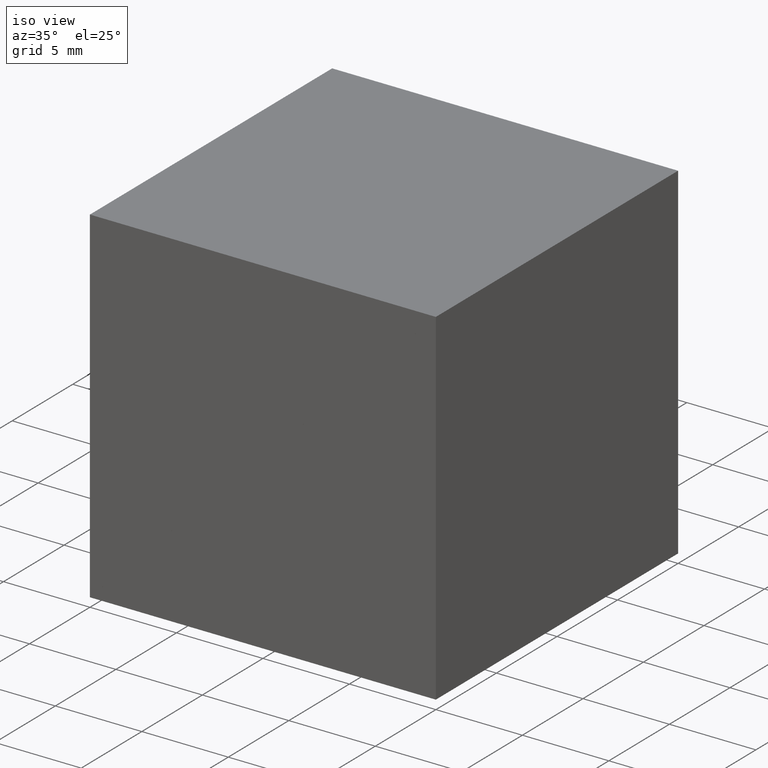
[diagram: clean part render]
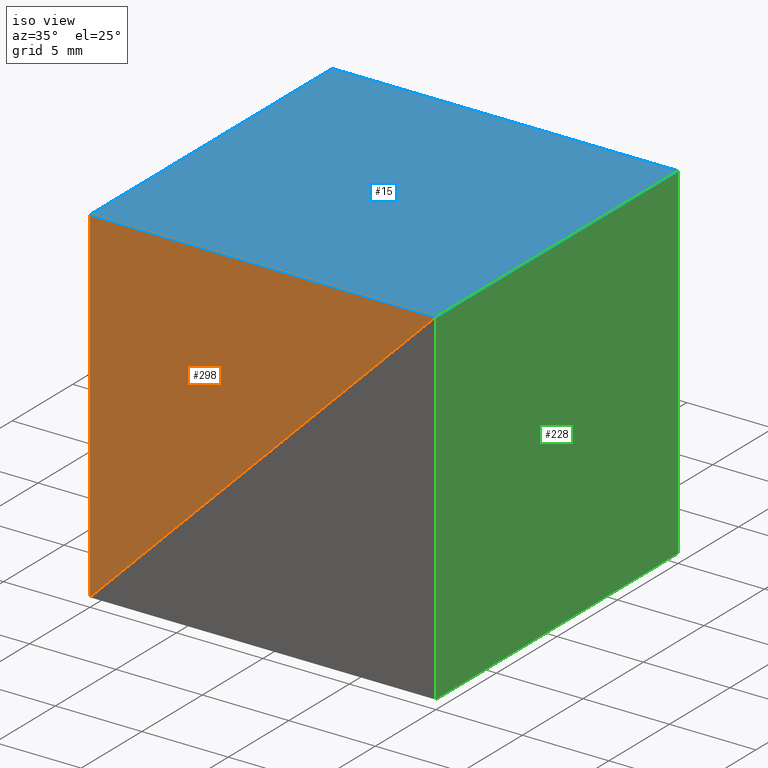
[diagram: same view with three faces highlighted in distinct colors, each labeled with its STEP entity id]
A machine part, iso view with three faces highlighted in distinct colors.
Their STEP definitions:

[orange] entity #298 — the highlighted planar face has unit normal (0, 1, 0).
#4 = ORIENTED_EDGE ( 'NONE', *, *, #5, .T. ) ;
#5 = EDGE_CURVE ( 'NONE', #12, #141, #219, .T. ) ;
#12 = VERTEX_POINT ( 'NONE', #286 ) ;
#24 = AXIS2_PLACEMENT_3D ( 'NONE', #295, #188, #40 ) ;
#31 = VECTOR ( 'NONE', #161, 1000.000000000000000 ) ;
#38 = CARTESIAN_POINT ( 'NONE',  ( -20.00000000000000000, -0.0000000000000000000, -19.99999999999999600 ) ) ;
#40 = DIRECTION ( 'NONE',  ( 0.0000000000000000000, -0.0000000000000000000, 1.000000000000000000 ) ) ;
#52 = CARTESIAN_POINT ( 'NONE',  ( 0.0000000000000000000, 0.0000000000000000000, 0.0000000000000000000 ) ) ;
#75 = VECTOR ( 'NONE', #99, 1000.000000000000000 ) ;
#99 = DIRECTION ( 'NONE',  ( -1.000000000000000000, -0.0000000000000000000, -0.0000000000000000000 ) ) ;
#105 = DIRECTION ( 'NONE',  ( 0.7071067811865475700, 0.0000000000000000000, 0.7071067811865474600 ) ) ;
#108 = PLANE ( 'NONE',  #24 ) ;
#122 = CARTESIAN_POINT ( 'NONE',  ( 0.0000000000000000000, 0.0000000000000000000, 0.0000000000000000000 ) ) ;
#126 = VERTEX_POINT ( 'NONE', #178 ) ;
#138 = FACE_OUTER_BOUND ( 'NONE', #168, .T. ) ;
#141 = VERTEX_POINT ( 'NONE', #122 ) ;
#147 = CARTESIAN_POINT ( 'NONE',  ( -20.00000000000000000, 0.0000000000000000000, 0.0000000000000000000 ) ) ;
#152 = ORIENTED_EDGE ( 'NONE', *, *, #257, .T. ) ;
#161 = DIRECTION ( 'NONE',  ( -0.0000000000000000000, -0.0000000000000000000, -1.000000000000000000 ) ) ;
#168 = EDGE_LOOP ( 'NONE', ( #4, #190, #152 ) ) ;
#173 = EDGE_CURVE ( 'NONE', #141, #126, #292, .T. ) ;
#178 = CARTESIAN_POINT ( 'NONE',  ( -20.00000000000000000, 0.0000000000000000000, 0.0000000000000000000 ) ) ;
#188 = DIRECTION ( 'NONE',  ( 0.0000000000000000000, 1.000000000000000000, 0.0000000000000000000 ) ) ;
#190 = ORIENTED_EDGE ( 'NONE', *, *, #173, .T. ) ;
#219 = LINE ( 'NONE', #52, #241 ) ;
#241 = VECTOR ( 'NONE', #105, 1000.000000000000000 ) ;
#257 = EDGE_CURVE ( 'NONE', #126, #12, #278, .T. ) ;
#278 = LINE ( 'NONE', #38, #31 ) ;
#286 = CARTESIAN_POINT ( 'NONE',  ( -20.00000000000000000, -0.0000000000000000000, -19.99999999999999600 ) ) ;
#292 = LINE ( 'NONE', #147, #75 ) ;
#295 = CARTESIAN_POINT ( 'NONE',  ( 0.0000000000000000000, 0.0000000000000000000, 0.0000000000000000000 ) ) ;
#298 = ADVANCED_FACE ( 'NONE', ( #138 ), #108, .F. ) ;

[blue] entity #15 — the highlighted planar face has unit normal (-0, 0, 1).
#1 = FACE_OUTER_BOUND ( 'NONE', #225, .T. ) ;
#6 = CARTESIAN_POINT ( 'NONE',  ( 0.0000000000000000000, 20.00000000000000000, 0.0000000000000000000 ) ) ;
#7 = CARTESIAN_POINT ( 'NONE',  ( 0.0000000000000000000, 20.00000000000000000, 0.0000000000000000000 ) ) ;
#13 = CARTESIAN_POINT ( 'NONE',  ( -20.00000000000000000, 20.00000000000000000, 0.0000000000000000000 ) ) ;
#15 = ADVANCED_FACE ( 'NONE', ( #1 ), #154, .T. ) ;
#21 = ORIENTED_EDGE ( 'NONE', *, *, #68, .T. ) ;
#41 = VECTOR ( 'NONE', #66, 1000.000000000000000 ) ;
#44 = ORIENTED_EDGE ( 'NONE', *, *, #71, .F. ) ;
#45 = LINE ( 'NONE', #6, #117 ) ;
#48 = CARTESIAN_POINT ( 'NONE',  ( -20.00000000000000000, 20.00000000000000000, 0.0000000000000000000 ) ) ;
#54 = DIRECTION ( 'NONE',  ( 1.000000000000000000, 0.0000000000000000000, 0.0000000000000000000 ) ) ;
#65 = EDGE_CURVE ( 'NONE', #194, #74, #273, .T. ) ;
#66 = DIRECTION ( 'NONE',  ( 0.0000000000000000000, -1.000000000000000000, 0.0000000000000000000 ) ) ;
#68 = EDGE_CURVE ( 'NONE', #74, #126, #140, .T. ) ;
#71 = EDGE_CURVE ( 'NONE', #194, #141, #45, .T. ) ;
#74 = VERTEX_POINT ( 'NONE', #171 ) ;
#75 = VECTOR ( 'NONE', #99, 1000.000000000000000 ) ;
#77 = DIRECTION ( 'NONE',  ( -0.0000000000000000000, 0.0000000000000000000, 1.000000000000000000 ) ) ;
#99 = DIRECTION ( 'NONE',  ( -1.000000000000000000, -0.0000000000000000000, -0.0000000000000000000 ) ) ;
#117 = VECTOR ( 'NONE', #144, 1000.000000000000000 ) ;
#122 = CARTESIAN_POINT ( 'NONE',  ( 0.0000000000000000000, 0.0000000000000000000, 0.0000000000000000000 ) ) ;
#126 = VERTEX_POINT ( 'NONE', #178 ) ;
#136 = VECTOR ( 'NONE', #240, 1000.000000000000000 ) ;
#140 = LINE ( 'NONE', #174, #41 ) ;
#141 = VERTEX_POINT ( 'NONE', #122 ) ;
#144 = DIRECTION ( 'NONE',  ( 0.0000000000000000000, -1.000000000000000000, 0.0000000000000000000 ) ) ;
#147 = CARTESIAN_POINT ( 'NONE',  ( -20.00000000000000000, 0.0000000000000000000, 0.0000000000000000000 ) ) ;
#154 = PLANE ( 'NONE',  #258 ) ;
#171 = CARTESIAN_POINT ( 'NONE',  ( -20.00000000000000000, 20.00000000000000000, 0.0000000000000000000 ) ) ;
#173 = EDGE_CURVE ( 'NONE', #141, #126, #292, .T. ) ;
#174 = CARTESIAN_POINT ( 'NONE',  ( -20.00000000000000000, 20.00000000000000000, 0.0000000000000000000 ) ) ;
#178 = CARTESIAN_POINT ( 'NONE',  ( -20.00000000000000000, 0.0000000000000000000, 0.0000000000000000000 ) ) ;
#181 = ORIENTED_EDGE ( 'NONE', *, *, #65, .T. ) ;
#194 = VERTEX_POINT ( 'NONE', #7 ) ;
#225 = EDGE_LOOP ( 'NONE', ( #259, #44, #181, #21 ) ) ;
#240 = DIRECTION ( 'NONE',  ( -1.000000000000000000, -0.0000000000000000000, -0.0000000000000000000 ) ) ;
#258 = AXIS2_PLACEMENT_3D ( 'NONE', #13, #77, #54 ) ;
#259 = ORIENTED_EDGE ( 'NONE', *, *, #173, .F. ) ;
#273 = LINE ( 'NONE', #48, #136 ) ;
#292 = LINE ( 'NONE', #147, #75 ) ;

[green] entity #228 — the highlighted planar face has unit normal (-1, 0, 0).
#17 = PLANE ( 'NONE',  #84 ) ;
#19 = LINE ( 'NONE', #222, #51 ) ;
#35 = DIRECTION ( 'NONE',  ( 0.0000000000000000000, 0.0000000000000000000, 1.000000000000000000 ) ) ;
#47 = VERTEX_POINT ( 'NONE', #281 ) ;
#51 = VECTOR ( 'NONE', #95, 1000.000000000000000 ) ;
#56 = CARTESIAN_POINT ( 'NONE',  ( 0.0000000000000000000, 20.00000000000000000, 0.0000000000000000000 ) ) ;
#67 = VECTOR ( 'NONE', #183, 1000.000000000000000 ) ;
#70 = VECTOR ( 'NONE', #261, 1000.000000000000000 ) ;
#72 = CARTESIAN_POINT ( 'NONE',  ( 0.0000000000000000000, 20.00000000000000000, 0.0000000000000000000 ) ) ;
#83 = LINE ( 'NONE', #289, #121 ) ;
#84 = AXIS2_PLACEMENT_3D ( 'NONE', #130, #186, #35 ) ;
#89 = VERTEX_POINT ( 'NONE', #244 ) ;
#90 = ORIENTED_EDGE ( 'NONE', *, *, #155, .F. ) ;
#95 = DIRECTION ( 'NONE',  ( 0.0000000000000000000, 0.0000000000000000000, -1.000000000000000000 ) ) ;
#109 = EDGE_CURVE ( 'NONE', #47, #89, #19, .T. ) ;
#121 = VECTOR ( 'NONE', #270, 1000.000000000000000 ) ;
#130 = CARTESIAN_POINT ( 'NONE',  ( 0.0000000000000000000, 20.00000000000000000, 0.0000000000000000000 ) ) ;
#135 = EDGE_CURVE ( 'NONE', #238, #237, #265, .T. ) ;
#137 = EDGE_CURVE ( 'NONE', #238, #47, #245, .T. ) ;
#155 = EDGE_CURVE ( 'NONE', #237, #89, #83, .T. ) ;
#182 = ORIENTED_EDGE ( 'NONE', *, *, #135, .F. ) ;
#183 = DIRECTION ( 'NONE',  ( -0.0000000000000000000, -1.000000000000000000, -0.0000000000000000000 ) ) ;
#186 = DIRECTION ( 'NONE',  ( -1.000000000000000000, 0.0000000000000000000, 0.0000000000000000000 ) ) ;
#222 = CARTESIAN_POINT ( 'NONE',  ( 0.0000000000000000000, 0.0000000000000000000, 0.0000000000000000000 ) ) ;
#228 = ADVANCED_FACE ( 'NONE', ( #269 ), #17, .F. ) ;
#237 = VERTEX_POINT ( 'NONE', #294 ) ;
#238 = VERTEX_POINT ( 'NONE', #56 ) ;
#244 = CARTESIAN_POINT ( 'NONE',  ( 0.0000000000000000000, 0.0000000000000000000, -20.00000000000000000 ) ) ;
#245 = LINE ( 'NONE', #72, #67 ) ;
#255 = ORIENTED_EDGE ( 'NONE', *, *, #109, .T. ) ;
#261 = DIRECTION ( 'NONE',  ( 0.0000000000000000000, 0.0000000000000000000, -1.000000000000000000 ) ) ;
#265 = LINE ( 'NONE', #282, #70 ) ;
#269 = FACE_OUTER_BOUND ( 'NONE', #288, .T. ) ;
#270 = DIRECTION ( 'NONE',  ( -0.0000000000000000000, -1.000000000000000000, -0.0000000000000000000 ) ) ;
#275 = ORIENTED_EDGE ( 'NONE', *, *, #137, .T. ) ;
#281 = CARTESIAN_POINT ( 'NONE',  ( 0.0000000000000000000, 0.0000000000000000000, 0.0000000000000000000 ) ) ;
#282 = CARTESIAN_POINT ( 'NONE',  ( 0.0000000000000000000, 20.00000000000000000, 0.0000000000000000000 ) ) ;
#288 = EDGE_LOOP ( 'NONE', ( #255, #90, #182, #275 ) ) ;
#289 = CARTESIAN_POINT ( 'NONE',  ( 0.0000000000000000000, 20.00000000000000000, -20.00000000000000000 ) ) ;
#294 = CARTESIAN_POINT ( 'NONE',  ( 0.0000000000000000000, 20.00000000000000000, -20.00000000000000000 ) ) ;